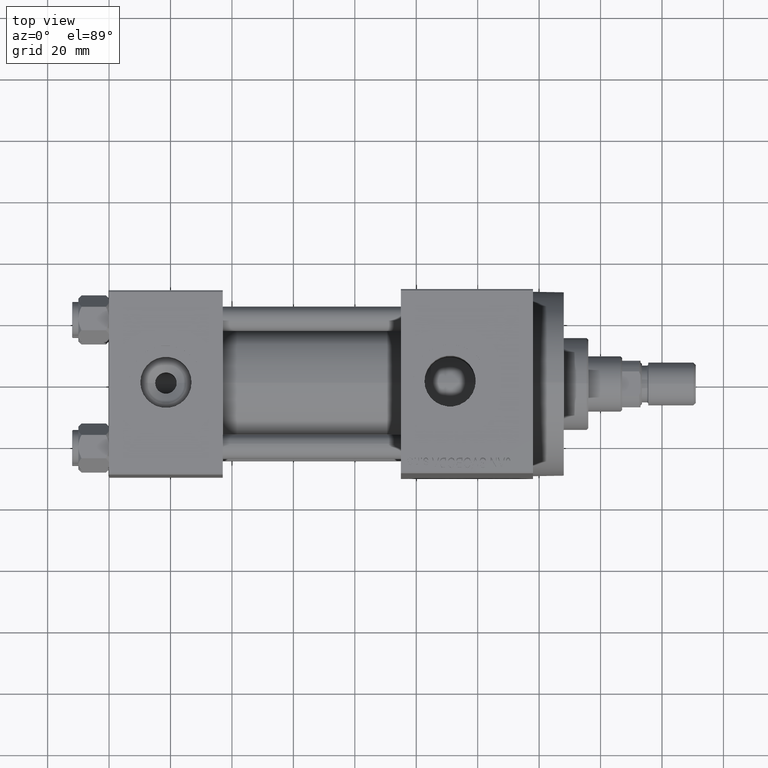
[diagram: clean part render]
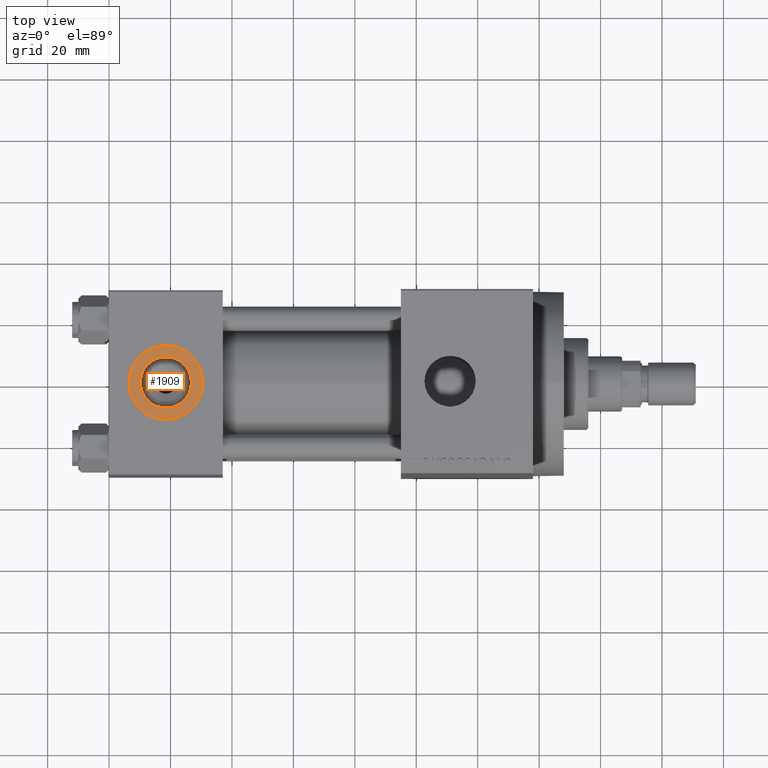
[diagram: same view with one face highlighted and labeled with its STEP entity id]
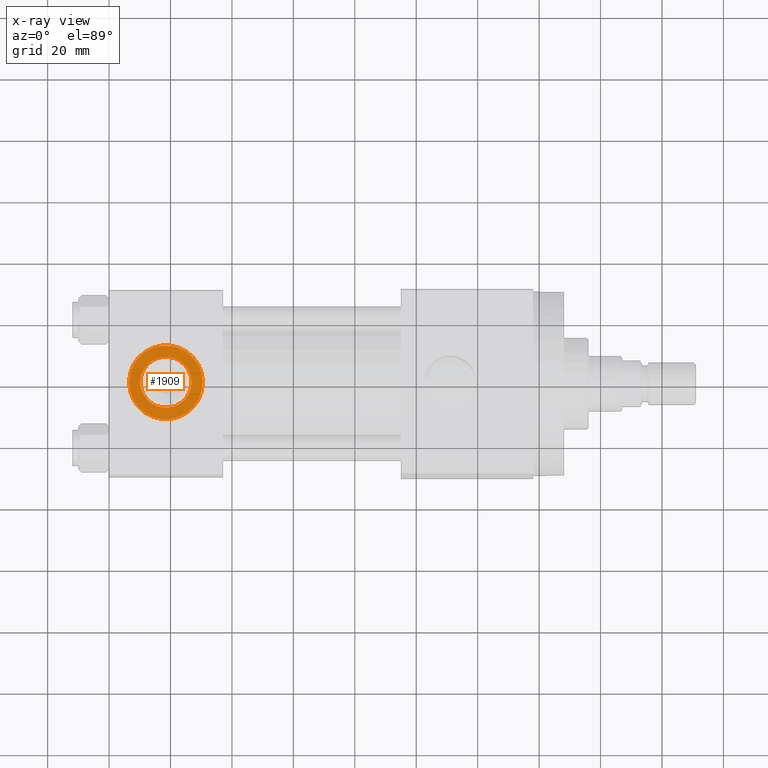
[diagram: x-ray of the same camera — body ghosted, the highlighted face saturated]
A machine part, top view. The second image highlights one B-rep face of the part: STEP entity #1909.
The next image is the same camera in x-ray: the body ghosted, the highlighted face saturated — about 0% of this face is hidden behind the body in this view.
In plain terms, the highlighted planar face has unit normal (0, 0, 1).
Its self-contained STEP definition (entity closure, byte-faithful):
#220 = AXIS2_PLACEMENT_3D ( 'NONE', #43914, #22996, #2995 ) ;
#1310 = EDGE_CURVE ( 'NONE', #30088, #18237, #33968, .T. ) ;
#1454 = ORIENTED_EDGE ( 'NONE', *, *, #38922, .F. ) ;
#1909 = ADVANCED_FACE ( 'NONE', ( #5265, #45468 ), #23649, .T. ) ;
#2535 = CIRCLE ( 'NONE', #220, 12.00000000000000000 ) ;
#2995 = DIRECTION ( 'NONE',  ( 1.000000000000000000, 0.000000000000000000, 0.000000000000000000 ) ) ;
#3790 = AXIS2_PLACEMENT_3D ( 'NONE', #29980, #26818, #23173 ) ;
#3987 = ORIENTED_EDGE ( 'NONE', *, *, #1310, .T. ) ;
#5184 = EDGE_LOOP ( 'NONE', ( #3987, #21379 ) ) ;
#5247 = EDGE_LOOP ( 'NONE', ( #1454, #9094 ) ) ;
#5265 = FACE_BOUND ( 'NONE', #5247, .T. ) ;
#6036 = EDGE_CURVE ( 'NONE', #9942, #36085, #33200, .T. ) ;
#9094 = ORIENTED_EDGE ( 'NONE', *, *, #6036, .F. ) ;
#9214 = AXIS2_PLACEMENT_3D ( 'NONE', #33240, #25492, #36630 ) ;
#9238 = CARTESIAN_POINT ( 'NONE',  ( 30.50000000000000000, -3.469446951953614978E-15, 29.79999999999999716 ) ) ;
#9942 = VERTEX_POINT ( 'NONE', #10660 ) ;
#10660 = CARTESIAN_POINT ( 'NONE',  ( 10.16999999999999638, -2.449316168263869821E-15, 29.79999999999999716 ) ) ;
#12450 = AXIS2_PLACEMENT_3D ( 'NONE', #44901, #26244, #26962 ) ;
#18237 = VERTEX_POINT ( 'NONE', #45216 ) ;
#21107 = CARTESIAN_POINT ( 'NONE',  ( 18.50000000000000000, -3.469446951953614978E-15, 29.79999999999999716 ) ) ;
#21379 = ORIENTED_EDGE ( 'NONE', *, *, #30863, .T. ) ;
#22996 = DIRECTION ( 'NONE',  ( 0.000000000000000000, 0.000000000000000000, 1.000000000000000000 ) ) ;
#23173 = DIRECTION ( 'NONE',  ( 1.000000000000000000, 0.000000000000000000, -0.000000000000000000 ) ) ;
#23466 = CARTESIAN_POINT ( 'NONE',  ( 26.82999999999999829, -3.469446951953614978E-15, 29.79999999999999716 ) ) ;
#23649 = PLANE ( 'NONE',  #3790 ) ;
#25469 = DIRECTION ( 'NONE',  ( 1.000000000000000000, 0.000000000000000000, 0.000000000000000000 ) ) ;
#25492 = DIRECTION ( 'NONE',  ( 0.000000000000000000, 0.000000000000000000, 1.000000000000000000 ) ) ;
#26244 = DIRECTION ( 'NONE',  ( 0.000000000000000000, 0.000000000000000000, 1.000000000000000000 ) ) ;
#26818 = DIRECTION ( 'NONE',  ( 0.000000000000000000, 0.000000000000000000, 1.000000000000000000 ) ) ;
#26962 = DIRECTION ( 'NONE',  ( 1.000000000000000000, 0.000000000000000000, 0.000000000000000000 ) ) ;
#29980 = CARTESIAN_POINT ( 'NONE',  ( 18.50000000000000000, -3.469446951953614978E-15, 29.79999999999999716 ) ) ;
#30088 = VERTEX_POINT ( 'NONE', #9238 ) ;
#30863 = EDGE_CURVE ( 'NONE', #18237, #30088, #2535, .T. ) ;
#31643 = AXIS2_PLACEMENT_3D ( 'NONE', #21107, #42933, #25469 ) ;
#33200 = CIRCLE ( 'NONE', #31643, 8.330000000000000071 ) ;
#33240 = CARTESIAN_POINT ( 'NONE',  ( 18.50000000000000000, -3.469446951953614978E-15, 29.79999999999999716 ) ) ;
#33968 = CIRCLE ( 'NONE', #9214, 12.00000000000000000 ) ;
#36085 = VERTEX_POINT ( 'NONE', #23466 ) ;
#36630 = DIRECTION ( 'NONE',  ( 1.000000000000000000, 0.000000000000000000, 0.000000000000000000 ) ) ;
#37198 = CIRCLE ( 'NONE', #12450, 8.330000000000000071 ) ;
#38922 = EDGE_CURVE ( 'NONE', #36085, #9942, #37198, .T. ) ;
#42933 = DIRECTION ( 'NONE',  ( 0.000000000000000000, 0.000000000000000000, 1.000000000000000000 ) ) ;
#43914 = CARTESIAN_POINT ( 'NONE',  ( 18.50000000000000000, -3.469446951953614978E-15, 29.79999999999999716 ) ) ;
#44901 = CARTESIAN_POINT ( 'NONE',  ( 18.50000000000000000, -3.469446951953614978E-15, 29.79999999999999716 ) ) ;
#45216 = CARTESIAN_POINT ( 'NONE',  ( 6.499999999999997335, -1.999870792976790833E-15, 29.79999999999999716 ) ) ;
#45468 = FACE_OUTER_BOUND ( 'NONE', #5184, .T. ) ;